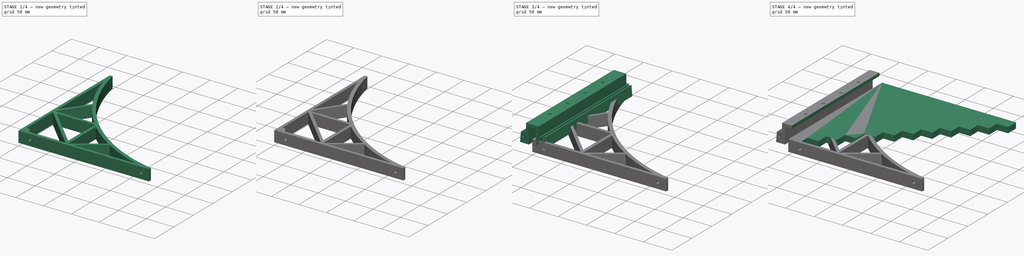
[diagram: build sequence overview — one tinted view per stage of 4, left to right]
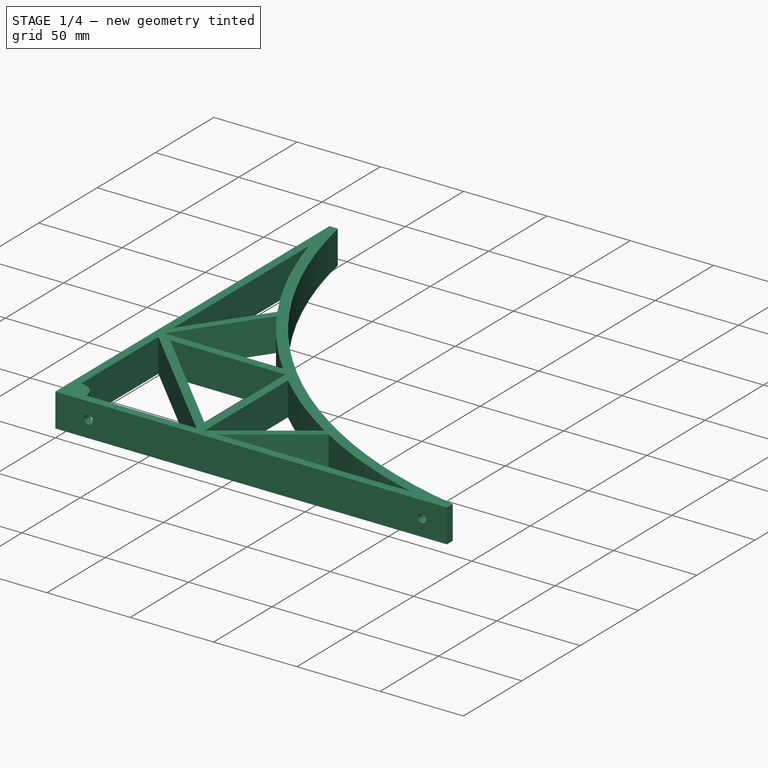
[diagram: stage 1 of 4 — iso view after this stage's code; geometry added in this stage tinted green]
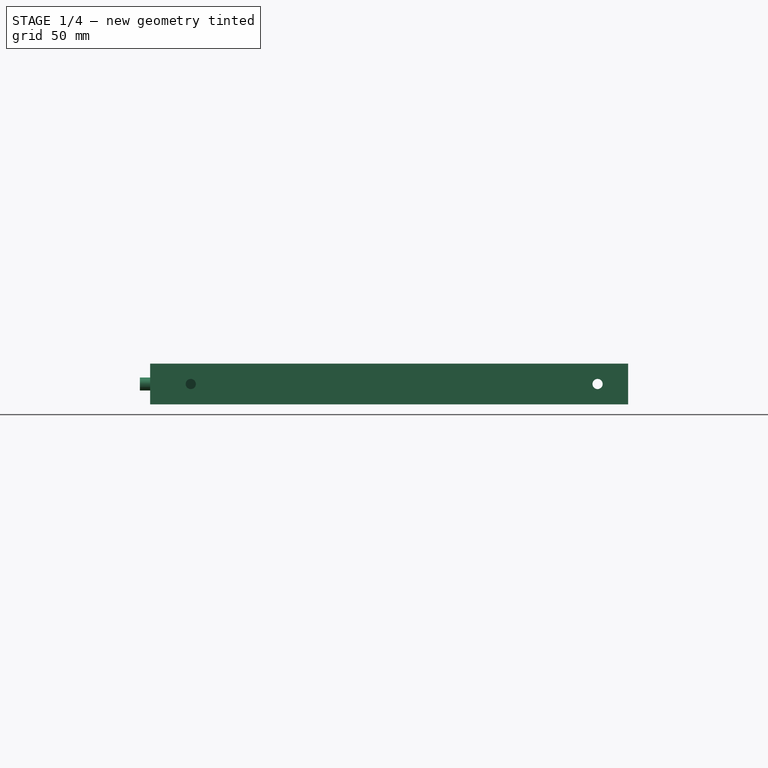
[diagram: stage 1 of 4 — front view after this stage's code; geometry added in this stage tinted green]
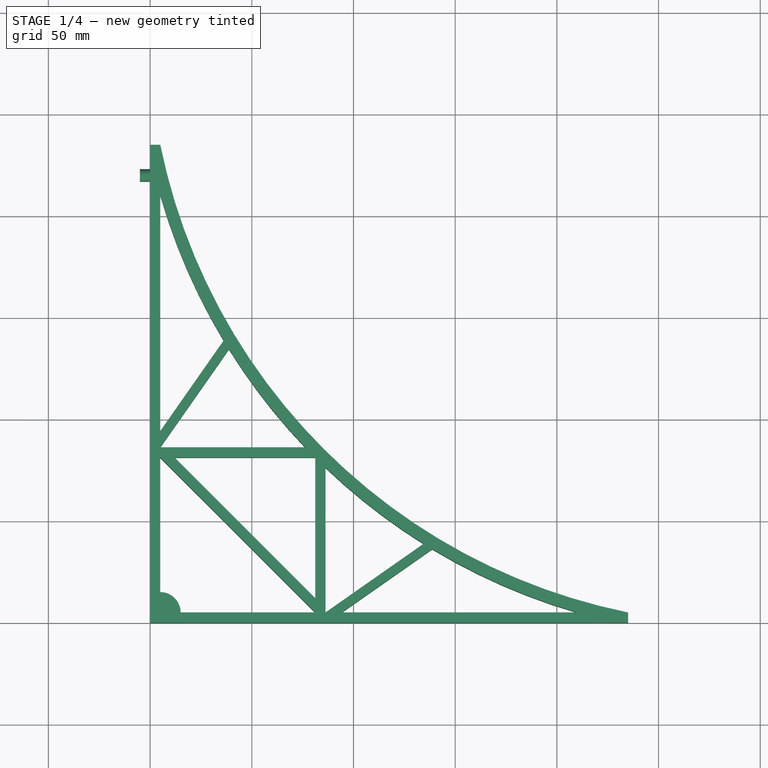
[diagram: stage 1 of 4 — top view after this stage's code; geometry added in this stage tinted green]
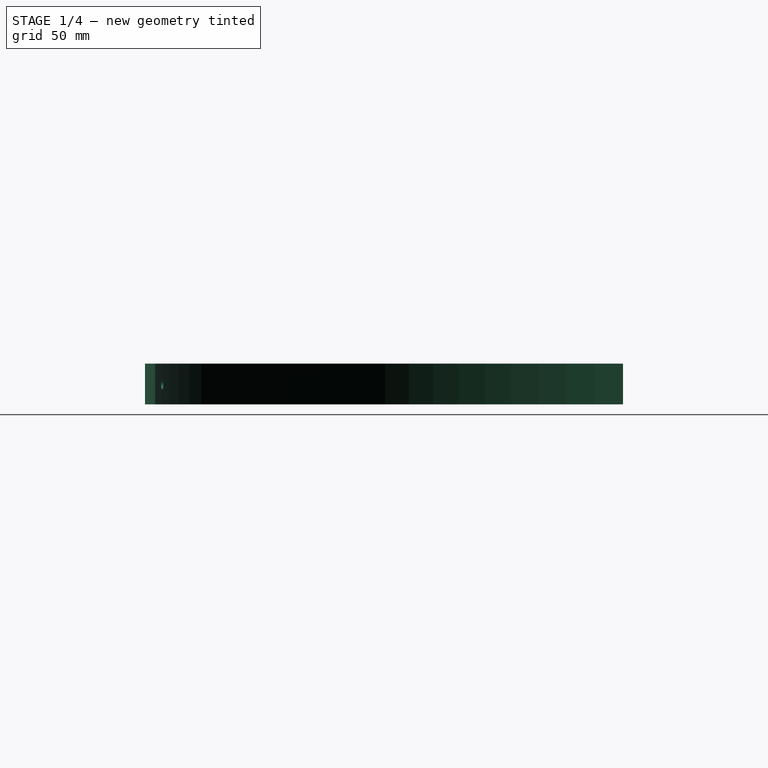
[diagram: stage 1 of 4 — right view after this stage's code; geometry added in this stage tinted green]
FCSTD DOCUMENT  (FreeCAD 2023.131R26244 +5365 (Git))
Label: Shelf Support
License: All rights reserved
LicenseURL: http://en.wikipedia.org/wiki/All_rights_reserved
objects: Sketcher::SketchObject×12, PartDesign::Pocket×6, PartDesign::Pad×4, PartDesign::Body×3, Spreadsheet::Sheet×1, PartDesign::Fillet×1, PartDesign::SubShapeBinder×1
note: 61 computed .brp shape members not serialized (recipe doc carries the construction recipe); baked Part::Feature solids carry a one-line shape summary decoded from their .brp

FEATURE [PartDesign::Body] Body  label="Tetris"
  AutoGroupSolids = false
  ClaimAllChildren = false
  ExportMode = 0
  Group = -> [Sketch,Sketch001,Pad,Pocket]
  InvalidShape = false
  Origin = -> Origin
  Tip = -> Pocket
  TreeRank = 11
  ValidateShape = true
  _ExportChildren = -> [Pad,Pocket]
  _GroupVersion = 1
FEATURE [Sketcher::SketchObject] Sketch002
  ArcFitTolerance = 1e-06
  AttachmentSupport = -> [XY_Plane001]
  ExternalBSplineMaxDegree = 5
  ExternalBSplineTolerance = 0.0001
  FullyConstrained = true
  InternalTolerance = 1e-06
  InvalidShape = false
  MakeInternals = false
  MapMode = 5
  Support = -> [XY_Plane001]
  TreeRank = 29
  ValidateShape = true
  expr: Constraints[10] = <<Parameters>>.board_width
  expr: Constraints[11] = <<Parameters>>.board_width
  expr: Constraints[12] = <<Parameters>>.thickness
  expr: Constraints[13] = <<Parameters>>.board_width * 1.25
  expr: Constraints[19] = <<Parameters>>.thickness
  expr: Constraints[20] = <<Parameters>>.thickness
  expr: Constraints[21] = <<Parameters>>.thickness
  expr: Constraints[22] = <<Parameters>>.thickness * 5
  expr: Constraints[23] = <<Parameters>>.thickness * 4
  expr: Constraints[26] = <<Parameters>>.thickness
  expr: Constraints[27] = <<Parameters>>.thickness
  expr: Constraints[33] = <<Parameters>>.thickness
  expr: Constraints[34] = <<Parameters>>.thickness
  expr: Constraints[44] = <<Parameters>>.thickness
  expr: Constraints[49] = <<Parameters>>.thickness
  expr: Constraints[67] = <<Parameters>>.thickness
  sketch-geometry (26):
    g0: LineSegment StartX=0 StartY=0 StartZ=0 EndX=0 EndY=235 EndZ=0
    g1: LineSegment StartX=0 StartY=235 StartZ=0 EndX=5 EndY=235 EndZ=0
    g2: LineSegment StartX=5 StartY=210 StartZ=0 EndX=5 EndY=94.2123 EndZ=0
    g3: LineSegment StartX=15 StartY=5 StartZ=0 EndX=81.2169 EndY=5 EndZ=0
    g4: LineSegment StartX=235 StartY=5 StartZ=0 EndX=235 EndY=0 EndZ=0
    g5: LineSegment StartX=235 StartY=0 StartZ=0 EndX=0 EndY=0 EndZ=0
    g6: ArcOfCircle CenterX=293.75 CenterY=293.75 CenterZ=0 NormalX=0 NormalY=0 NormalZ=1 AngleXU=0 Radius=294.666 StartAngle=3.34232 EndAngle=4.51167
    g7: ArcOfCircle CenterX=293.75 CenterY=293.75 CenterZ=0 NormalX=0 NormalY=0 NormalZ=1 AngleXU=0 Radius=300.65 StartAngle=3.42389 EndAngle=3.68339
    g8: ArcOfCircle CenterX=5 CenterY=5 CenterZ=0 NormalX=0 NormalY=0 NormalZ=1 AngleXU=0 Radius=10 StartAngle=0 EndAngle=1.5708
    g9: LineSegment StartX=5 StartY=86.2169 StartZ=0 EndX=76.2169 EndY=86.2169 EndZ=0
    g10: LineSegment StartX=86.2169 StartY=5 StartZ=0 EndX=86.2169 EndY=76.2169 EndZ=0
    g11: LineSegment StartX=12.0711 StartY=81.2169 StartZ=0 EndX=81.2169 EndY=81.2169 EndZ=0
    g12: LineSegment StartX=81.2169 StartY=81.2169 StartZ=0 EndX=81.2169 EndY=12.0711 EndZ=0
    g13: ArcOfCircle CenterX=293.75 CenterY=293.75 CenterZ=0 NormalX=0 NormalY=0 NormalZ=1 AngleXU=0 Radius=300.65 StartAngle=3.95051 EndAngle=4.15396
    g14: LineSegment StartX=94.2123 StartY=5 StartZ=0 EndX=210 EndY=5 EndZ=0
    g15: LineSegment StartX=5 StartY=81.2169 StartZ=0 EndX=5 EndY=15 EndZ=0
    g16: LineSegment StartX=86.2169 StartY=5 StartZ=0 EndX=134.449 EndY=38.7722 EndZ=0
    g17: LineSegment StartX=94.2123 StartY=5 StartZ=0 EndX=138.711 EndY=36.1583 EndZ=0
    g18: LineSegment StartX=5 StartY=86.2169 StartZ=0 EndX=38.7722 EndY=134.449 EndZ=0
    g19: LineSegment StartX=5 StartY=94.2123 StartZ=0 EndX=36.1583 EndY=138.711 EndZ=0
    g20: ArcOfCircle CenterX=293.75 CenterY=293.75 CenterZ=0 NormalX=0 NormalY=0 NormalZ=1 AngleXU=0 Radius=300.65 StartAngle=3.70002 EndAngle=3.90347
    g21: ArcOfCircle CenterX=293.75 CenterY=293.75 CenterZ=0 NormalX=0 NormalY=0 NormalZ=1 AngleXU=0 Radius=300.65 StartAngle=4.17059 EndAngle=4.43009
    g22: LineSegment StartX=81.2169 StartY=5 StartZ=0 EndX=5 EndY=81.2169 EndZ=0
    g23: LineSegment StartX=81.2169 StartY=12.0711 StartZ=0 EndX=12.0711 EndY=81.2169 EndZ=0
    g24: GeomPoint [constr] X=43.1085 Y=43.1085 Z=0
    g25: GeomPoint [constr] X=46.644 Y=46.644 Z=0
  constraints (74):
    c: Coincident(g0,g-1)
    c: PointOnObject(g0,g-2)
    c: Coincident(g1,g0)
    c: Vertical(g2)
    c: Horizontal(g3)
    c: PointOnObject(g4,g-1)
    c: Coincident(g5,g4)
    c: Coincident(g5,g0)
    c: Horizontal(g1)
    c: Vertical(g4)
    c: DistanceY(g0,g0) = 235
    c: DistanceX(g0,g4) = 235
    c: DistanceX(g0,g1) = 5
    c: DistanceX(g0,g6) = 293.75
    c: Coincident(g7,g6)
    c: Coincident(g6,g4)
    c: Coincident(g6,g1)
    c: Coincident(g2,g7)
    c: Coincident(g14,g21)
    c: DistanceX(g0,g2) = 5
    c: DistanceY(g4,g14) = 5
    c: DistanceY(g4,g4) = 5
    c: DistanceX(g14,g4) = 25
    c: Diameter(g8) = 20
    c: Coincident(g8,g3)
    c: Coincident(g8,g15)
    c: DistanceX(g0,g8) = 5
    c: DistanceY(g0,g8) = 5
    c: Horizontal(g9)
    c: Vertical(g10)
    c: Horizontal(g11)
    c: Coincident(g12,g11)
    c: Vertical(g12)
    c: DistanceX(g3,g10) = 5
    c: DistanceY(g15,g9) = 5
    c: Coincident(g20,g9)
    c: Coincident(g13,g10)
    c: Coincident(g7,g13)
    c: Symmetric(g9,g10,g11)
    c: DistanceY(g10,g3) = 0
    c: DistanceX(g9,g15) = 0
    c: Horizontal(g14)
    c: Vertical(g15)
    c: Parallel(g16,g17)
    c: Distance(g16,g17) = 5
    c: Coincident(g16,g10)
    c: Angle(g14,g17) = 0.610865
    c: Coincident(g18,g9)
    c: Parallel(g18,g19)
    c: Distance(g18,g19) = 5
    c: Angle(g19,g2) = 0.610865
    c: Coincident(g14,g17)
    c: Equal(g7,g20)
    c: Coincident(g7,g19)
    c: Coincident(g20,g18)
    c: Coincident(g7,g20)
    c: Coincident(g2,g19)
    c: Equal(g13,g21)
    c: Coincident(g13,g16)
    c: Coincident(g21,g17)
    c: Coincident(g13,g21)
    c: DistanceY(g10,g14) = 0
    c: DistanceX(g2,g9) = 0
    c: Coincident(g22,g3)
    c: Coincident(g22,g15)
    c: Parallel(g22,g23)
    c: Symmetric(g23,g23,g25)
    c: Distance(g24,g25) = 5
    c: Coincident(g12,g23)
    c: Coincident(g11,g23)
    c: DistanceX(g23,g3) = 0
    c: DistanceY(g15,g11) = 0
    c: Equal(g3,g15)
    c: Symmetric(g15,g3,g24)
FEATURE [PartDesign::Pad] Pad001
  AddSubType = 0
  AlongSketchNormal = false
  AutoTaperInnerAngle = true
  CheckUpToFaceLimits = true
  ClaimChildren = false
  Direction = (0,0,1)
  Fit = 0
  FitJoin = 0
  InnerFit = 0
  InnerFitJoin = 0
  InvalidShape = false
  Length = 10
  Length2 = 10
  Linearize = true
  NewSolid = false
  Profile = -> Sketch002
  Suppress = false
  TaperInnerAngle = 0
  TaperInnerAngleRev = 0
  TreeRank = 30
  Type = 4
  ValidateShape = true
  _ProfileBasedVersion = 1
FEATURE [Sketcher::SketchObject] Sketch003
  ArcFitTolerance = 1e-06
  AttachmentSupport = -> [Pad001]
  ExternalBSplineMaxDegree = 5
  ExternalBSplineTolerance = 0.0001
  FullyConstrained = true
  InternalTolerance = 1e-06
  InvalidShape = false
  MakeInternals = false
  MapMode = 5
  Placement = pos=(0,0,0) rot=(1,0,0;1.5708rad)
  Support = -> [Pad001]
  TreeRank = 31
  ValidateShape = true
  expr: Constraints[4] = <<Parameters>>.board_width - 3 * <<Parameters>>.thickness
  expr: Constraints[5] = <<Parameters>>.thickness * 4
  sketch-geometry (2):
    g0: Circle CenterX=20 CenterY=0 CenterZ=0 NormalX=0 NormalY=0 NormalZ=1 AngleXU=0 Radius=2.5
    g1: Circle CenterX=220 CenterY=0 CenterZ=0 NormalX=0 NormalY=0 NormalZ=1 AngleXU=0 Radius=2.5
  constraints (6):
    c: PointOnObject(g0,g-1)
    c: PointOnObject(g1,g-1)
    c: Equal(g0,g1)
    c: Diameter(g0) = 5
    c: DistanceX(g-1,g1) = 220
    c: DistanceX(g-1,g0) = 20
FEATURE [PartDesign::Pocket] Pocket001
  AddSubType = 1
  AutoTaperInnerAngle = true
  BaseFeature = -> Pad001
  CheckUpToFaceLimits = true
  ClaimChildren = false
  Fit = 0
  FitJoin = 0
  InnerFit = 0
  InnerFitJoin = 0
  InvalidShape = false
  Length = 50
  Length2 = 100
  Linearize = true
  NewSolid = false
  Profile = -> Sketch003
  Suppress = false
  TaperInnerAngle = 0
  TaperInnerAngleRev = 0
  TreeRank = 32
  Type = 0
  ValidateShape = true
  _ProfileBasedVersion = 1
  _Version = 1
  expr: Length = <<Parameters>>.thickness * 10
FEATURE [Sketcher::SketchObject] Sketch004
  ArcFitTolerance = 1e-06
  AttachmentSupport = -> [Pocket001]
  ExternalBSplineMaxDegree = 5
  ExternalBSplineTolerance = 0.0001
  FullyConstrained = true
  InternalTolerance = 1e-06
  InvalidShape = false
  MakeInternals = false
  MapMode = 5
  Placement = pos=(0,0,0) rot=(0.57735,-0.57735,-0.57735;2.0944rad)
  Support = -> [Pocket001]
  TreeRank = 33
  ValidateShape = true
  expr: Constraints[2] = <<Parameters>>.board_width - 3 * <<Parameters>>.thickness
  sketch-geometry (1):
    g0: Circle CenterX=-220 CenterY=0 CenterZ=0 NormalX=0 NormalY=0 NormalZ=1 AngleXU=0 Radius=3.175
  constraints (3):
    c: PointOnObject(g0,g-1)
    c: Diameter(g0) = 6.35
    c: DistanceX(g0,g-1) = 220
FEATURE [PartDesign::Pad] Pad002
  AddSubType = 0
  AlongSketchNormal = false
  AutoTaperInnerAngle = true
  BaseFeature = -> Pocket001
  CheckUpToFaceLimits = true
  ClaimChildren = false
  Direction = (-1,0,0)
  Fit = 0
  FitJoin = 0
  InnerFit = 0
  InnerFitJoin = 0
  InvalidShape = false
  Length = 5
  Length2 = 100
  Linearize = true
  NewSolid = false
  Profile = -> Sketch004
  Suppress = false
  TaperInnerAngle = 0
  TaperInnerAngleRev = 0
  TreeRank = 34
  Type = 0
  ValidateShape = true
  _ProfileBasedVersion = 1
  expr: Length = <<Parameters>>.thickness
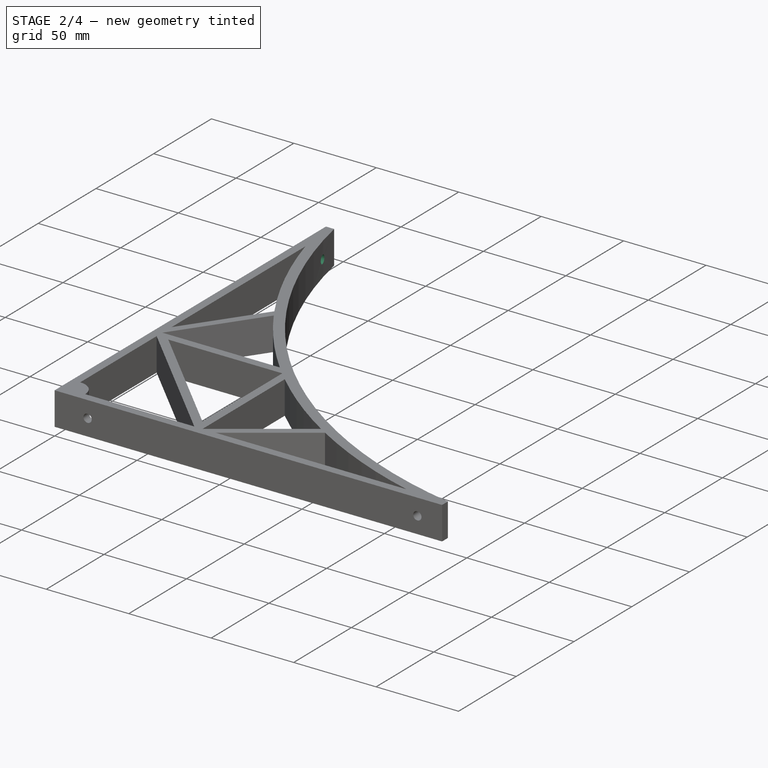
[diagram: stage 2 of 4 — iso view after this stage's code; geometry added in this stage tinted green]
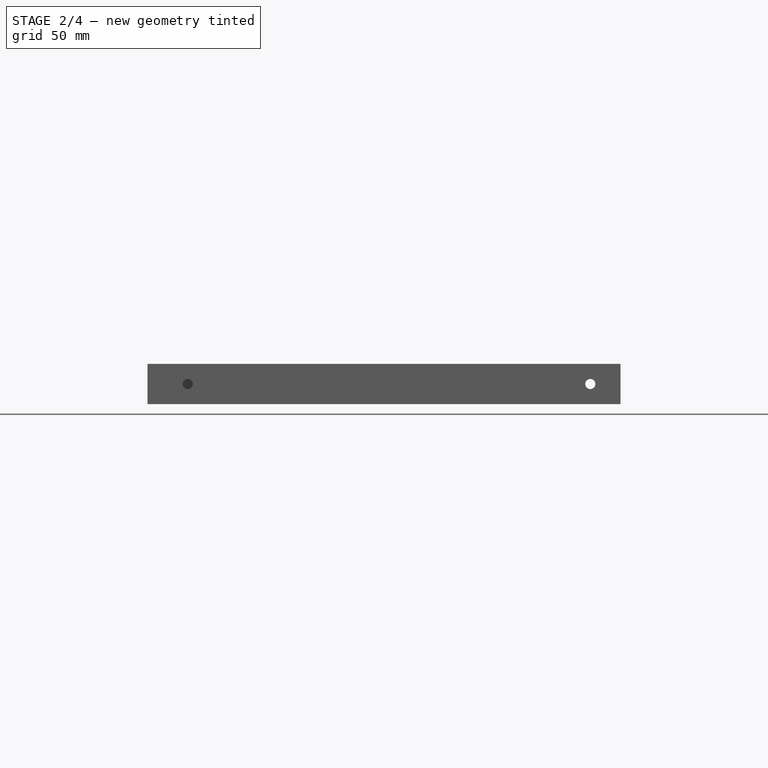
[diagram: stage 2 of 4 — front view after this stage's code; geometry added in this stage tinted green]
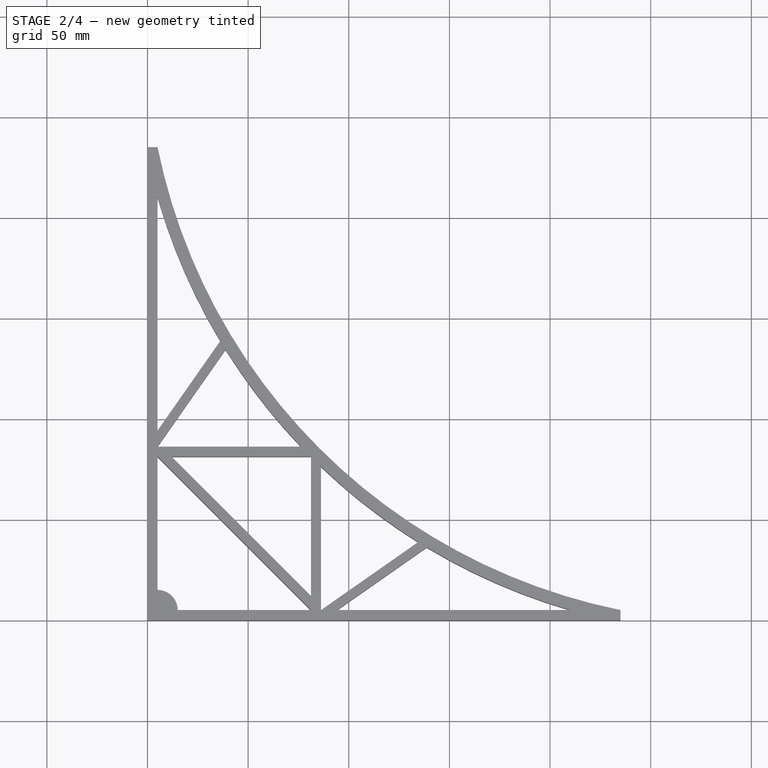
[diagram: stage 2 of 4 — top view after this stage's code; geometry added in this stage tinted green]
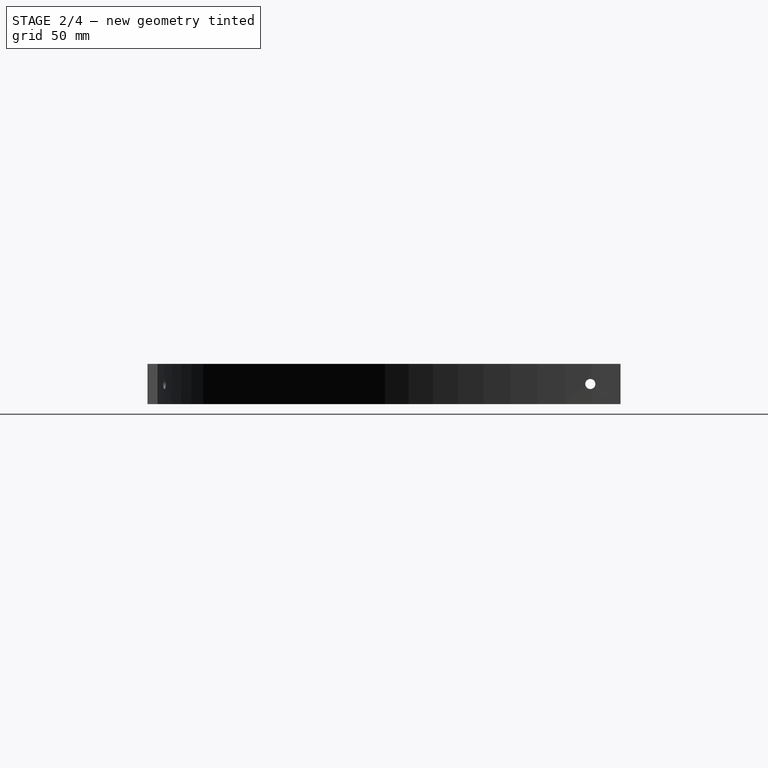
[diagram: stage 2 of 4 — right view after this stage's code; geometry added in this stage tinted green]
FEATURE [PartDesign::Fillet] Fillet
  AddSubType = 0
  Base = -> Pad002 [Edge57]
  BaseFeature = -> Pad002
  InvalidShape = false
  NewSolid = false
  Radius = 3.175
  SupportTransform = false
  Suppress = false
  TreeRank = 35
  ValidateShape = true
FEATURE [PartDesign::Body] Body002  label="Bin Hangar"
  AutoGroupSolids = false
  ClaimAllChildren = false
  ExportMode = 0
  Group = -> [Sketch005,Pad003,Pad003_Profile,Sketch007,Pocket002,Sketch008,Pocket003]
  InvalidShape = false
  Origin = -> Origin002
  Tip = -> Pocket003
  TreeRank = 45
  ValidateShape = true
  _ExportChildren = -> [Sketch005,Pad003,Pocket002,Pocket003]
  _GroupVersion = 1
FEATURE [Sketcher::SketchObject] Sketch009
  ArcFitTolerance = 1e-06
  AttachmentSupport = -> [Fillet]
  ExternalBSplineMaxDegree = 5
  ExternalBSplineTolerance = 0.0001
  FullyConstrained = true
  InternalTolerance = 1e-06
  InvalidShape = false
  MakeInternals = false
  MapMode = 5
  Placement = pos=(0,0,0) rot=(0.57735,-0.57735,-0.57735;2.0944rad)
  Support = -> [Fillet]
  TreeRank = 57
  ValidateShape = true
  expr: Constraints[3] = <<Parameters>>.thickness * 4
  expr: Constraints[4] = <<Parameters>>.board_width - 3 * <<Parameters>>.thickness
  expr: Constraints[5] = <<Parameters>>.bin_hangar_screw_hole_diameter
  sketch-geometry (2):
    g0: Circle CenterX=-20 CenterY=0 CenterZ=0 NormalX=0 NormalY=0 NormalZ=1 AngleXU=0 Radius=2.5
    g1: Circle CenterX=-220 CenterY=0 CenterZ=0 NormalX=0 NormalY=0 NormalZ=1 AngleXU=0 Radius=2.5
  constraints (6):
    c: PointOnObject(g0,g-1)
    c: PointOnObject(g1,g-1)
    c: Equal(g1,g0)
    c: DistanceX(g0,g-1) = 20
    c: DistanceX(g1,g-1) = 220
    c: Diameter(g0) = 5
FEATURE [PartDesign::Pocket] Pocket004
  AddSubType = 1
  AutoTaperInnerAngle = true
  BaseFeature = -> Fillet
  CheckUpToFaceLimits = true
  ClaimChildren = false
  Fit = 0
  FitJoin = 0
  InnerFit = 0
  InnerFitJoin = 0
  InvalidShape = false
  Length = 20
  Length2 = 100
  Linearize = true
  NewSolid = false
  Profile = -> Sketch009
  Suppress = false
  TaperInnerAngle = 0
  TaperInnerAngleRev = 0
  TreeRank = 58
  Type = 0
  ValidateShape = true
  _ProfileBasedVersion = 1
  _Version = 1
FEATURE [Sketcher::SketchObject] Sketch010
  ArcFitTolerance = 1e-06
  AttachmentSupport = -> [XY_Plane001]
  ExternalBSplineMaxDegree = 5
  ExternalBSplineTolerance = 0.0001
  FullyConstrained = false
  InternalTolerance = 1e-06
  InvalidShape = false
  MakeInternals = false
  MapMode = 5
  Support = -> [XY_Plane001]
  TreeRank = 59
  ValidateShape = true
  sketch-geometry (4):
    g0: LineSegment StartX=0 StartY=0 StartZ=0 EndX=-169.421 EndY=0 EndZ=0
    g1: LineSegment StartX=-169.421 StartY=0 StartZ=0 EndX=-169.421 EndY=244.635 EndZ=0
    g2: LineSegment StartX=-169.421 StartY=244.635 StartZ=0 EndX=0 EndY=244.635 EndZ=0
    g3: LineSegment StartX=0 StartY=244.635 StartZ=0 EndX=0 EndY=0 EndZ=0
  constraints (9):
    c: Coincident(g0,g1)
    c: Coincident(g1,g2)
    c: Coincident(g2,g3)
    c: Coincident(g3,g0)
    c: Horizontal(g0)
    c: Horizontal(g2)
    c: Vertical(g1)
    c: Vertical(g3)
    c: Coincident(g0,g-1)
FEATURE [PartDesign::Pocket] Pocket005
  AddSubType = 1
  AutoTaperInnerAngle = true
  BaseFeature = -> Pocket004
  CheckUpToFaceLimits = true
  ClaimChildren = false
  Fit = 0
  FitJoin = 0
  InnerFit = 0
  InnerFitJoin = 0
  InvalidShape = false
  Length = 100
  Length2 = 100
  Linearize = true
  NewSolid = false
  Profile = -> Sketch010
  Suppress = false
  TaperInnerAngle = 0
  TaperInnerAngleRev = 0
  TreeRank = 60
  Type = 4
  ValidateShape = true
  _ProfileBasedVersion = 1
  _Version = 1
FEATURE [PartDesign::Body] Body001  label="Simple"
  AutoGroupSolids = false
  ClaimAllChildren = false
  ExportMode = 0
  Group = -> [Sketch002,Pad001,Sketch003,Pocket001,Sketch004,Pad002,Fillet,Sketch009,Pocket004,Sketch010,Pocket005]
  InvalidShape = false
  Origin = -> Origin001
  Tip = -> Pocket005
  TreeRank = 28
  ValidateShape = true
  _ExportChildren = -> [Pad001,Pocket001,Pad002,Fillet,Pocket004,Pocket005]
  _GroupVersion = 1
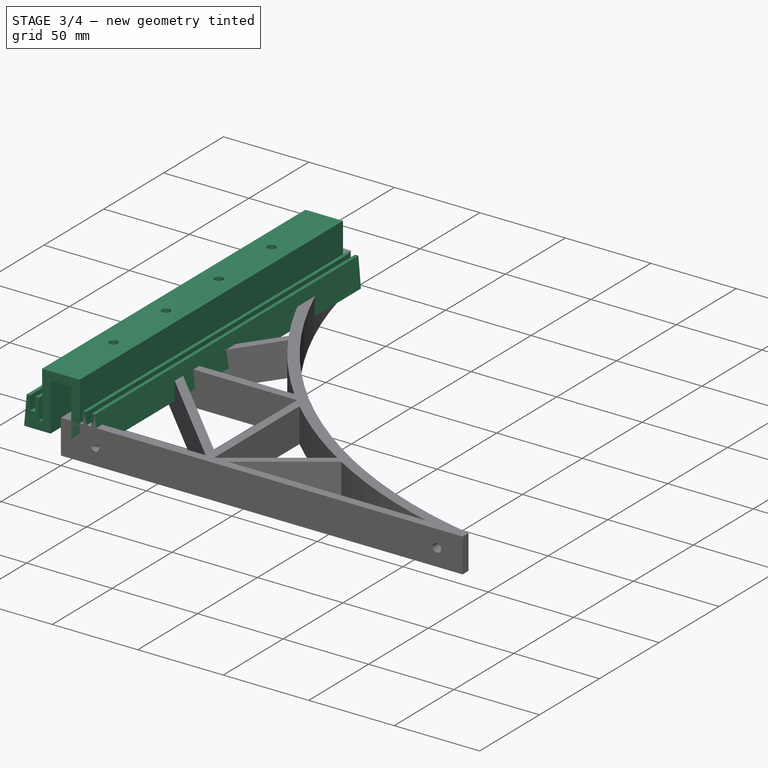
[diagram: stage 3 of 4 — iso view after this stage's code; geometry added in this stage tinted green]
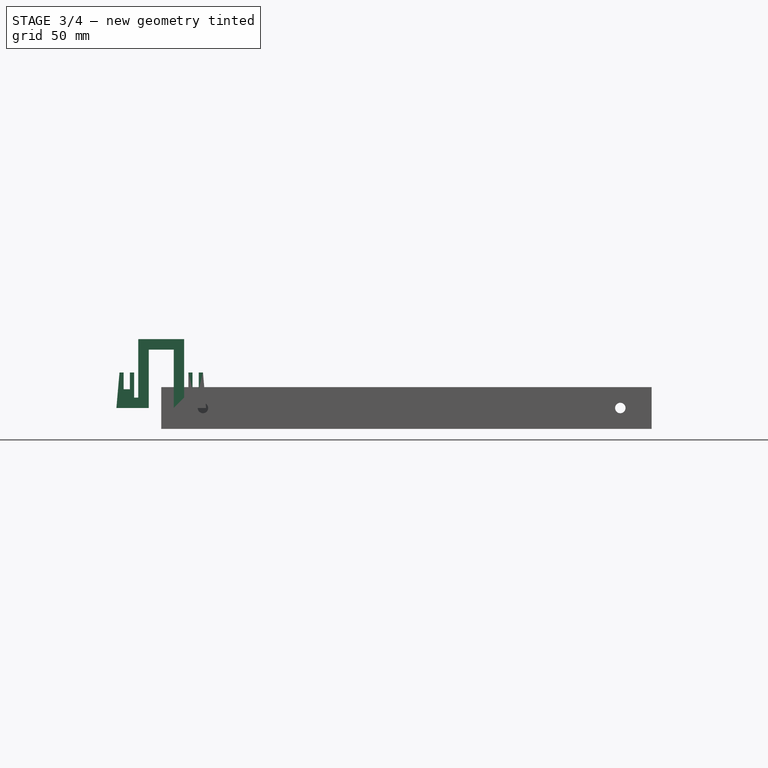
[diagram: stage 3 of 4 — front view after this stage's code; geometry added in this stage tinted green]
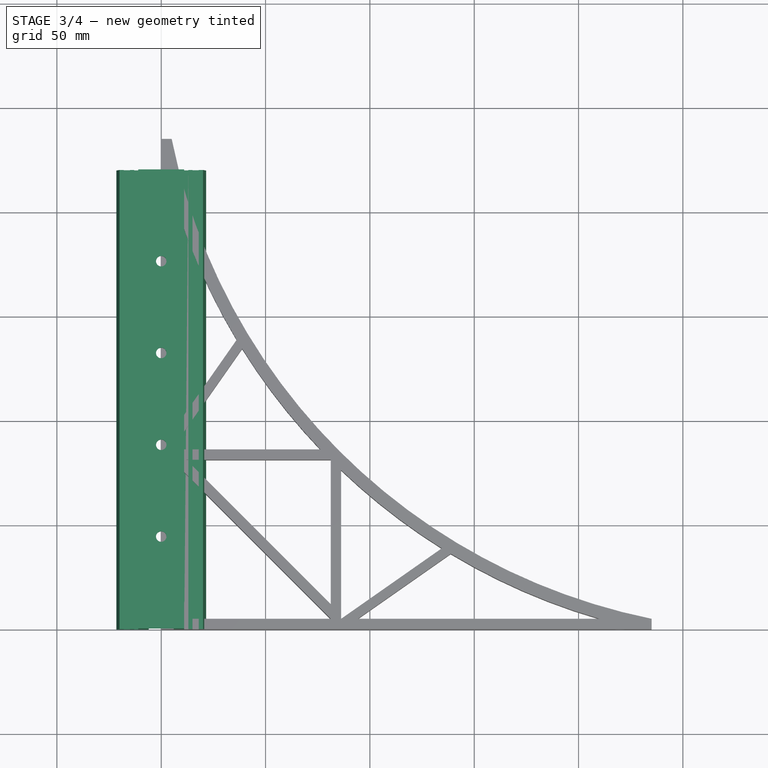
[diagram: stage 3 of 4 — top view after this stage's code; geometry added in this stage tinted green]
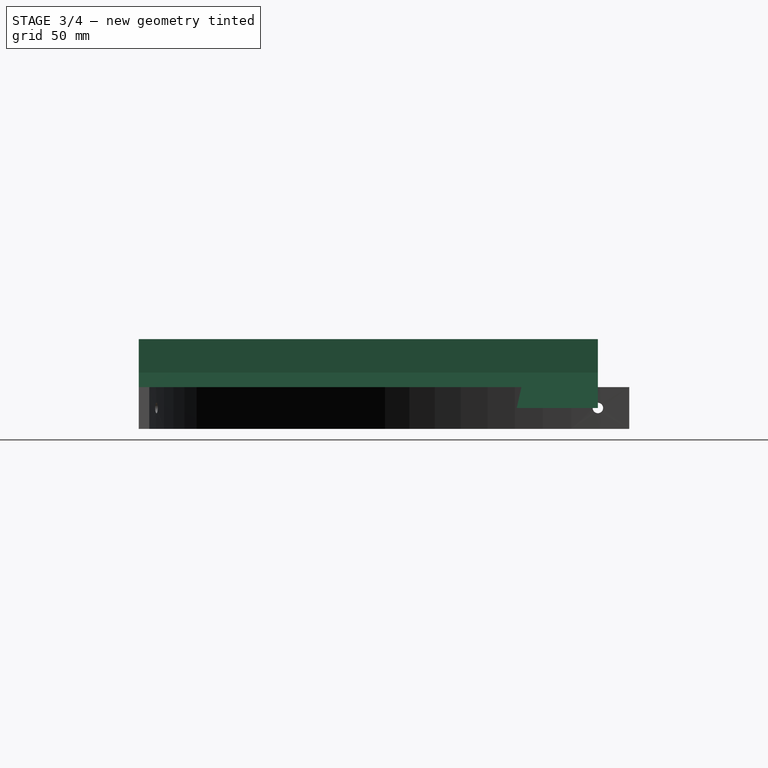
[diagram: stage 3 of 4 — right view after this stage's code; geometry added in this stage tinted green]
FEATURE [Sketcher::SketchObject] Sketch005
  ArcFitTolerance = 1e-06
  AttachmentSupport = -> [XZ_Plane002]
  ExternalBSplineMaxDegree = 5
  ExternalBSplineTolerance = 0.0001
  FullyConstrained = true
  InternalTolerance = 1e-06
  InvalidShape = false
  MakeInternals = false
  MapMode = 5
  Placement = pos=(0,0,0) rot=(1,0,0;1.5708rad)
  Support = -> [XZ_Plane002]
  TreeRank = 46
  ValidateShape = true
  expr: Constraints[10] = <<Parameters>>.tooth_offset_second
  expr: Constraints[13] = <<Parameters>>.thickness
  expr: Constraints[14] = <<Parameters>>.thickness
  expr: Constraints[15] = <<Parameters>>.shelf_to_bin_top + <<Parameters>>.bin_lid_height
  expr: Constraints[16] = <<Parameters>>.thickness
  expr: Constraints[17] = <<Parameters>>.bin_lid_overhand_depth
  expr: Constraints[29] = <<Parameters>>.plastic_thickness
  expr: Constraints[30] = <<Parameters>>.tooth_depth
  expr: Constraints[33] = <<Parameters>>.bin_hangar_screw_head_diameter / 2
  expr: Constraints[36] = <<Parameters>>.bin_hangar_screw_head_diameter
  expr: Constraints[39] = <<Parameters>>.bin_hangar_screw_head_diameter + 2 * <<Parameters>>.thickness
  expr: Constraints[9] = <<Parameters>>.tooth_offset_first
  sketch-geometry (13):
    g0: LineSegment StartX=-11 StartY=33 StartZ=0 EndX=-11 EndY=5 EndZ=0
    g1: LineSegment StartX=-11 StartY=5 StartZ=0 EndX=-13 EndY=5 EndZ=0
    g2: LineSegment StartX=-15 StartY=17 StartZ=0 EndX=-15 EndY=9 EndZ=0
    g3: LineSegment StartX=-15 StartY=9 StartZ=0 EndX=-18 EndY=9 EndZ=0
    g4: LineSegment StartX=-18 StartY=9 StartZ=0 EndX=-18 EndY=17 EndZ=0
    g5: LineSegment StartX=-21.4873 StartY=0 StartZ=0 EndX=-6 EndY=0 EndZ=0
    g6: LineSegment StartX=-6 StartY=0 StartZ=0 EndX=-6 EndY=28 EndZ=0
    g7: LineSegment StartX=-18 StartY=17 StartZ=0 EndX=-20 EndY=17 EndZ=0
    g8: LineSegment StartX=-20 StartY=17 StartZ=0 EndX=-21.4873 EndY=0 EndZ=0
    g9: LineSegment StartX=-15 StartY=17 StartZ=0 EndX=-13 EndY=17 EndZ=0
    g10: LineSegment StartX=-13 StartY=17 StartZ=0 EndX=-13 EndY=5 EndZ=0
    g11: LineSegment StartX=-6 StartY=28 StartZ=0 EndX=6 EndY=28 EndZ=0
    g12: LineSegment StartX=-11 StartY=33 StartZ=0 EndX=11 EndY=33 EndZ=0
  constraints (40):
    c: Vertical(g0)
    c: Coincident(g1,g0)
    c: Horizontal(g1)
    c: Coincident(g3,g2)
    c: Horizontal(g3)
    c: Coincident(g4,g3)
    c: Horizontal(g5)
    c: Coincident(g6,g5)
    c: Vertical(g6)
    c: DistanceX(g2,g0) = 4
    c: DistanceX(g4,g0) = 7
    c: Vertical(g2)
    c: Vertical(g4)
    c: DistanceY(g6,g0) = 5
    c: DistanceX(g0,g6) = 5
    c: DistanceY(g0,g0) = 28
    c: DistanceY(g5,g0) = 5
    c: DistanceY(g1,g2) = 4
    c: Equal(g4,g2)
    c: Coincident(g7,g4)
    c: Horizontal(g7)
    c: Coincident(g8,g7)
    c: Coincident(g8,g5)
    c: DistanceX(g7,g4) = 2
    c: Coincident(g9,g2)
    c: Horizontal(g9)
    c: Coincident(g10,g9)
    c: Coincident(g10,g1)
    c: Vertical(g10)
    c: DistanceX(g1,g0) = 2
    c: DistanceY(g3,g4) = 8
    c: Angle(g5,g8) = 1.48353
    c: PointOnObject(g5,g-1)
    c: DistanceX(g6,g-1) = 6
    c: Coincident(g11,g6)
    c: Horizontal(g11)
    c: DistanceX(g6,g11) = 12
    c: Coincident(g12,g0)
    c: Horizontal(g12)
    c: DistanceX(g0,g12) = 22
FEATURE [Sketcher::SketchObject] MirroredSketch
  ArcFitTolerance = 1e-06
  ExternalBSplineMaxDegree = 5
  ExternalBSplineTolerance = 0.0001
  FullyConstrained = false
  InternalTolerance = 1e-06
  InvalidShape = false
  MakeInternals = false
  Placement = pos=(0,0,0) rot=(1,0,0;1.5708rad)
  TreeRank = 48
  ValidateShape = true
  sketch-geometry (13):
    g0: LineSegment StartX=11 StartY=33 StartZ=0 EndX=11 EndY=5 EndZ=0
    g1: LineSegment StartX=11 StartY=5 StartZ=0 EndX=13 EndY=5 EndZ=0
    g2: LineSegment StartX=15 StartY=17 StartZ=0 EndX=15 EndY=9 EndZ=0
    g3: LineSegment StartX=15 StartY=9 StartZ=0 EndX=18 EndY=9 EndZ=0
    g4: LineSegment StartX=18 StartY=9 StartZ=0 EndX=18 EndY=17 EndZ=0
    g5: LineSegment StartX=21.4873 StartY=0 StartZ=0 EndX=6 EndY=0 EndZ=0
    g6: LineSegment StartX=6 StartY=0 StartZ=0 EndX=6 EndY=28 EndZ=0
    g7: LineSegment StartX=18 StartY=17 StartZ=0 EndX=20 EndY=17 EndZ=0
    g8: LineSegment StartX=20 StartY=17 StartZ=0 EndX=21.4873 EndY=0 EndZ=0
    g9: LineSegment StartX=15 StartY=17 StartZ=0 EndX=13 EndY=17 EndZ=0
    g10: LineSegment StartX=13 StartY=17 StartZ=0 EndX=13 EndY=5 EndZ=0
    g11: LineSegment StartX=6 StartY=28 StartZ=0 EndX=-6 EndY=28 EndZ=0
    g12: LineSegment StartX=11 StartY=33 StartZ=0 EndX=-11 EndY=33 EndZ=0
  constraints (26):
    c: Vertical(g0)
    c: Coincident(g1,g0)
    c: Horizontal(g1)
    c: Coincident(g3,g2)
    c: Horizontal(g3)
    c: Coincident(g4,g3)
    c: Horizontal(g5)
    c: Coincident(g6,g5)
    c: Vertical(g6)
    c: Vertical(g2)
    c: Vertical(g4)
    c: Equal(g4,g2)
    c: Coincident(g7,g4)
    c: Horizontal(g7)
    c: Coincident(g8,g7)
    c: Coincident(g8,g5)
    c: Coincident(g9,g2)
    c: Horizontal(g9)
    c: Coincident(g10,g9)
    c: Coincident(g10,g1)
    c: Vertical(g10)
    c: Angle(g5,g8) = -1.48353
    c: Coincident(g11,g6)
    c: Horizontal(g11)
    c: Coincident(g12,g0)
    c: Horizontal(g12)
FEATURE [Sketcher::SketchObject] Sketch006
  ArcFitTolerance = 1e-06
  ExternalBSplineMaxDegree = 5
  ExternalBSplineTolerance = 0.0001
  FullyConstrained = true
  InternalTolerance = 1e-06
  InvalidShape = false
  MakeInternals = false
  Placement = pos=(0,0,0) rot=(1,0,0;1.5708rad)
  TreeRank = 49
  ValidateShape = true
  sketch-geometry (24):
    g0: LineSegment StartX=-11 StartY=33 StartZ=0 EndX=-11 EndY=5 EndZ=0
    g1: LineSegment StartX=-11 StartY=5 StartZ=0 EndX=-13 EndY=5 EndZ=0
    g2: LineSegment StartX=-15 StartY=17 StartZ=0 EndX=-15 EndY=9 EndZ=0
    g3: LineSegment StartX=-15 StartY=9 StartZ=0 EndX=-18 EndY=9 EndZ=0
    g4: LineSegment StartX=-18 StartY=9 StartZ=0 EndX=-18 EndY=17 EndZ=0
    g5: LineSegment StartX=-21.4873 StartY=0 StartZ=0 EndX=-6 EndY=0 EndZ=0
    g6: LineSegment StartX=-6 StartY=0 StartZ=0 EndX=-6 EndY=28 EndZ=0
    g7: LineSegment StartX=-18 StartY=17 StartZ=0 EndX=-20 EndY=17 EndZ=0
    g8: LineSegment StartX=-20 StartY=17 StartZ=0 EndX=-21.4873 EndY=0 EndZ=0
    g9: LineSegment StartX=-15 StartY=17 StartZ=0 EndX=-13 EndY=17 EndZ=0
    g10: LineSegment StartX=-13 StartY=17 StartZ=0 EndX=-13 EndY=5 EndZ=0
    g11: LineSegment StartX=-6 StartY=28 StartZ=0 EndX=6 EndY=28 EndZ=0
    g12: LineSegment StartX=-11 StartY=33 StartZ=0 EndX=11 EndY=33 EndZ=0
    g13: LineSegment StartX=11 StartY=33 StartZ=0 EndX=11 EndY=5 EndZ=0
    g14: LineSegment StartX=11 StartY=5 StartZ=0 EndX=13 EndY=5 EndZ=0
    g15: LineSegment StartX=15 StartY=17 StartZ=0 EndX=15 EndY=9 EndZ=0
    g16: LineSegment StartX=15 StartY=9 StartZ=0 EndX=18 EndY=9 EndZ=0
    g17: LineSegment StartX=18 StartY=9 StartZ=0 EndX=18 EndY=17 EndZ=0
    g18: LineSegment StartX=21.4873 StartY=0 StartZ=0 EndX=6 EndY=0 EndZ=0
    g19: LineSegment StartX=6 StartY=0 StartZ=0 EndX=6 EndY=28 EndZ=0
    g20: LineSegment StartX=18 StartY=17 StartZ=0 EndX=20 EndY=17 EndZ=0
    g21: LineSegment StartX=20 StartY=17 StartZ=0 EndX=21.4873 EndY=0 EndZ=0
    g22: LineSegment StartX=15 StartY=17 StartZ=0 EndX=13 EndY=17 EndZ=0
    g23: LineSegment StartX=13 StartY=17 StartZ=0 EndX=13 EndY=5 EndZ=0
  constraints (72):
    c: Vertical(g0)
    c: Coincident(g1,g0)
    c: Horizontal(g1)
    c: Coincident(g3,g2)
    c: Horizontal(g3)
    c: Coincident(g4,g3)
    c: Horizontal(g5)
    c: Coincident(g6,g5)
    c: Vertical(g6)
    c: DistanceX(g2,g0) = 4
    c: DistanceX(g4,g0) = 7
    c: Vertical(g2)
    c: Vertical(g4)
    c: DistanceY(g6,g0) = 5
    c: DistanceX(g0,g6) = 5
    c: DistanceY(g0,g0) = 28
    c: DistanceY(g5,g0) = 5
    c: DistanceY(g1,g2) = 4
    c: Equal(g4,g2)
    c: Coincident(g7,g4)
    c: Horizontal(g7)
    c: Coincident(g8,g7)
    c: Coincident(g8,g5)
    c: DistanceX(g7,g4) = 2
    c: Coincident(g9,g2)
    c: Horizontal(g9)
    c: Coincident(g10,g9)
    c: Coincident(g10,g1)
    c: Vertical(g10)
    c: DistanceX(g1,g0) = 2
    c: DistanceY(g3,g4) = 8
    c: Angle(g5,g8) = 1.48353
    c: PointOnObject(g5,g-1)
    c: DistanceX(g6,g-1) = 6
    c: Coincident(g11,g6)
    c: Horizontal(g11)
    c: DistanceX(g6,g11) = 12
    c: Coincident(g12,g0)
    c: Horizontal(g12)
    c: DistanceX(g0,g12) = 22
    c: Vertical(g13)
    c: Coincident(g14,g13)
    c: Horizontal(g14)
    c: Coincident(g16,g15)
    c: Horizontal(g16)
    c: Coincident(g17,g16)
    c: Horizontal(g18)
    c: Coincident(g19,g18)
    c: Vertical(g19)
    c: Vertical(g15)
    c: Vertical(g17)
    c: Equal(g17,g15)
    c: Coincident(g20,g17)
    c: Horizontal(g20)
    c: Coincident(g21,g20)
    c: Coincident(g21,g18)
    c: Coincident(g22,g15)
    c: Horizontal(g22)
    c: Coincident(g23,g22)
    c: Coincident(g23,g14)
    c: Vertical(g23)
    c: Angle(g18,g21) = -1.48353
    c: Coincident(g19,g11)
    c: PointOnObject(g18,g-1)
    c: Coincident(g13,g12)
    c: Equal(g8,g21)
    c: Equal(g17,g4)
    c: Equal(g20,g7)
    c: Equal(g22,g9)
    c: Equal(g14,g1)
    c: Equal(g16,g3)
    c: Equal(g10,g23)
FEATURE [PartDesign::SubShapeBinder] Pad003_Profile  label="Pad003_Profile(Sketch006)"
  BindCopyOnChange = 0
  BindMode = 0
  ClaimChildren = false
  Context = -> Body002 [Pad003_Profile.]
  EdgeTolerance = 1e-06
  FillStyle = 0
  Fuse = false
  InvalidShape = false
  MakeFace = true
  MergeEdges = true
  OffsetFill = false
  OffsetIntersection = false
  OffsetJoinType = 0
  OffsetOpenResult = false
  Outline = false
  PartialLoad = false
  Relative = true
  SplitEdges = false
  Support = -> [Sketch006]
  TightBound = false
  TreeRank = 51
  ValidateShape = true
  _Version = 8
FEATURE [PartDesign::Pad] Pad003
  AddSubType = 0
  AlongSketchNormal = false
  AutoTaperInnerAngle = true
  CheckUpToFaceLimits = true
  ClaimChildren = false
  Direction = (0,1,-2e-16)
  Fit = 0
  FitJoin = 0
  InnerFit = 0
  InnerFitJoin = 0
  InvalidShape = false
  Length = 220
  Length2 = 100
  Linearize = true
  NewSolid = false
  Profile = -> Pad003_Profile
  Suppress = false
  TaperInnerAngle = 0
  TaperInnerAngleRev = 0
  TreeRank = 52
  Type = 0
  ValidateShape = true
  _ProfileBasedVersion = 1
  expr: Length = <<Parameters>>.hangar_length
FEATURE [Sketcher::SketchObject] Sketch007
  ArcFitTolerance = 1e-06
  AttachmentSupport = -> [Pad003]
  ExternalBSplineMaxDegree = 5
  ExternalBSplineTolerance = 0.0001
  FullyConstrained = true
  InternalTolerance = 1e-06
  InvalidShape = false
  MakeInternals = false
  MapMode = 5
  Placement = pos=(0,7.3e-15,33) rot=(0,0,1;0rad)
  Support = -> [Pad003]
  TreeRank = 53
  ValidateShape = true
  expr: Constraints[10] = <<Parameters>>.hangar_length / 5
  expr: Constraints[11] = <<Parameters>>.hangar_length / 5
  expr: Constraints[1] = <<Parameters>>.bin_hangar_screw_hole_diameter
  expr: Constraints[8] = <<Parameters>>.hangar_length / 5
  expr: Constraints[9] = <<Parameters>>.hangar_length / 5
  sketch-geometry (4):
    g0: Circle CenterX=0 CenterY=44 CenterZ=0 NormalX=0 NormalY=0 NormalZ=1 AngleXU=0 Radius=2.5
    g1: Circle CenterX=0 CenterY=88 CenterZ=0 NormalX=0 NormalY=0 NormalZ=1 AngleXU=0 Radius=2.5
    g2: Circle CenterX=0 CenterY=132 CenterZ=0 NormalX=0 NormalY=0 NormalZ=1 AngleXU=0 Radius=2.5
    g3: Circle CenterX=0 CenterY=176 CenterZ=0 NormalX=0 NormalY=0 NormalZ=1 AngleXU=0 Radius=2.5
  constraints (12):
    c: PointOnObject(g0,g-2)
    c: Diameter(g0) = 5
    c: PointOnObject(g1,g-2)
    c: PointOnObject(g2,g-2)
    c: PointOnObject(g3,g-2)
    c: Equal(g0,g1)
    c: Equal(g0,g2)
    c: Equal(g0,g3)
    c: DistanceY(g-1,g0) = 44
    c: DistanceY(g0,g1) = 44
    c: DistanceY(g2,g3) = 44
    c: DistanceY(g1,g2) = 44
FEATURE [PartDesign::Pocket] Pocket002
  AddSubType = 1
  AutoTaperInnerAngle = true
  BaseFeature = -> Pad003
  CheckUpToFaceLimits = true
  ClaimChildren = false
  Fit = 0
  FitJoin = 0
  InnerFit = 0
  InnerFitJoin = 0
  InvalidShape = false
  Length = 5
  Length2 = 100
  Linearize = true
  NewSolid = false
  Profile = -> Sketch007
  Suppress = false
  TaperInnerAngle = 0
  TaperInnerAngleRev = 0
  TreeRank = 54
  Type = 0
  ValidateShape = true
  _ProfileBasedVersion = 1
  _Version = 1
  expr: Length = <<Parameters>>.thickness
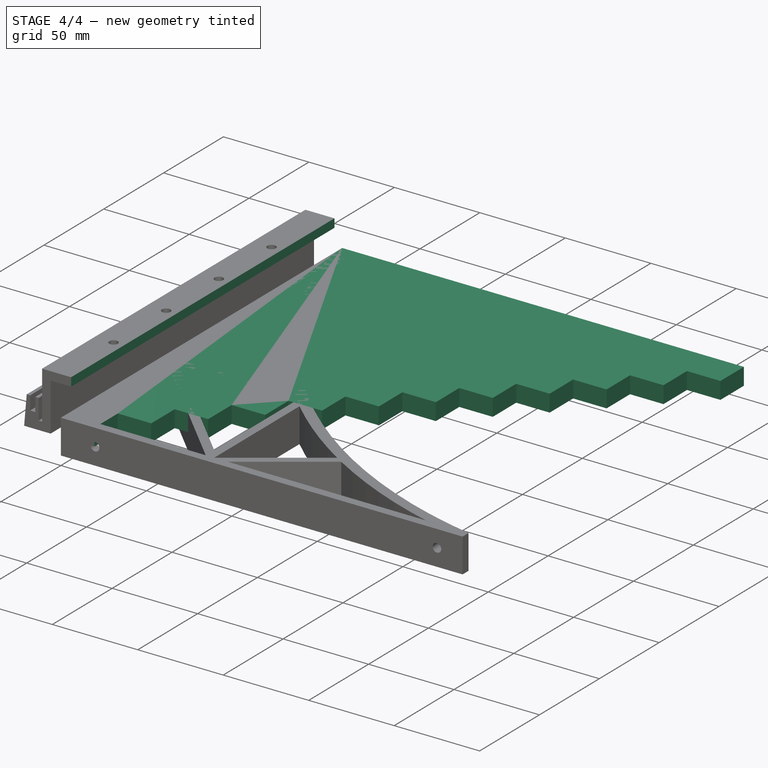
[diagram: stage 4 of 4 — iso view after this stage's code; geometry added in this stage tinted green]
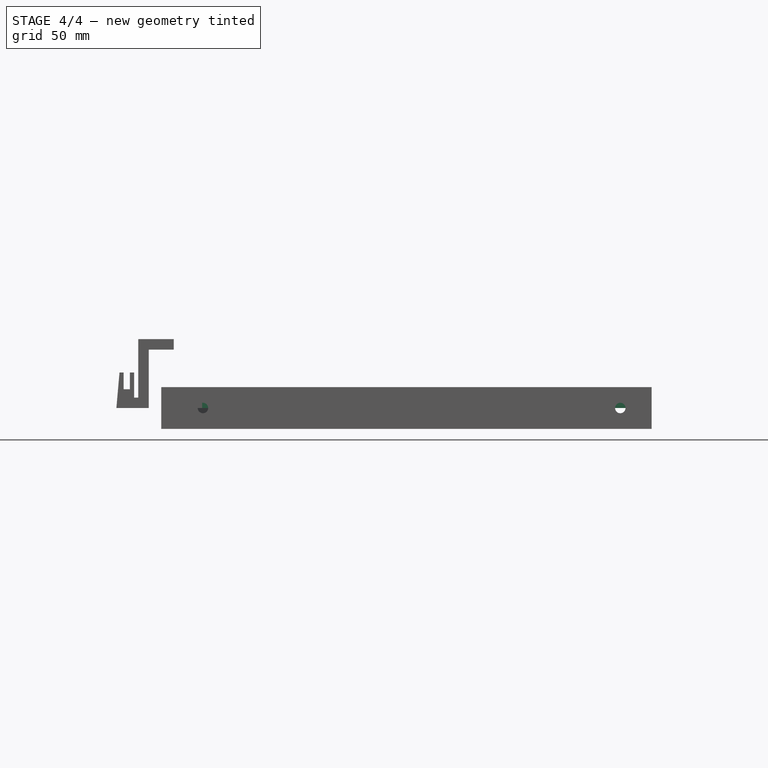
[diagram: stage 4 of 4 — front view after this stage's code; geometry added in this stage tinted green]
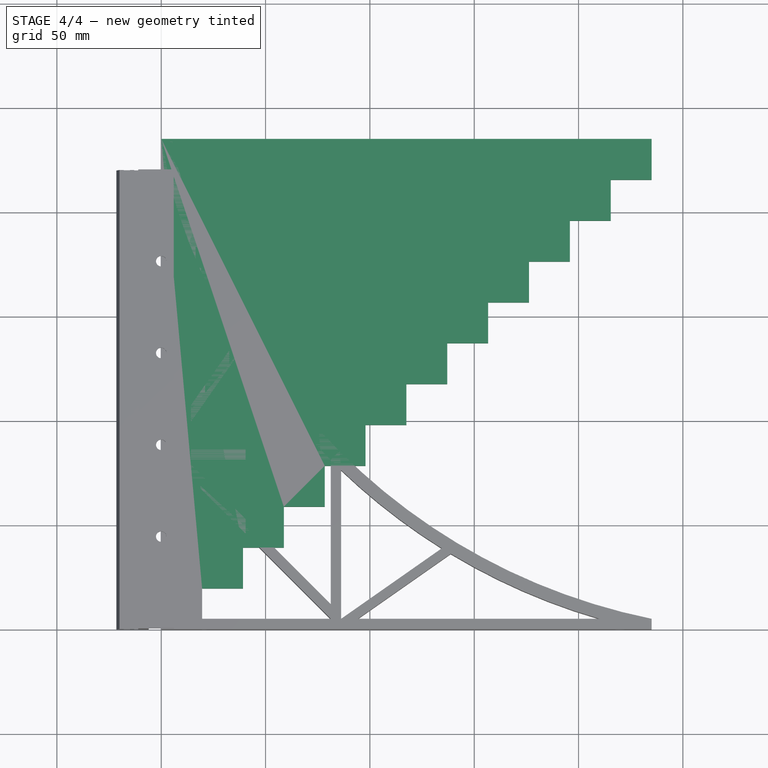
[diagram: stage 4 of 4 — top view after this stage's code; geometry added in this stage tinted green]
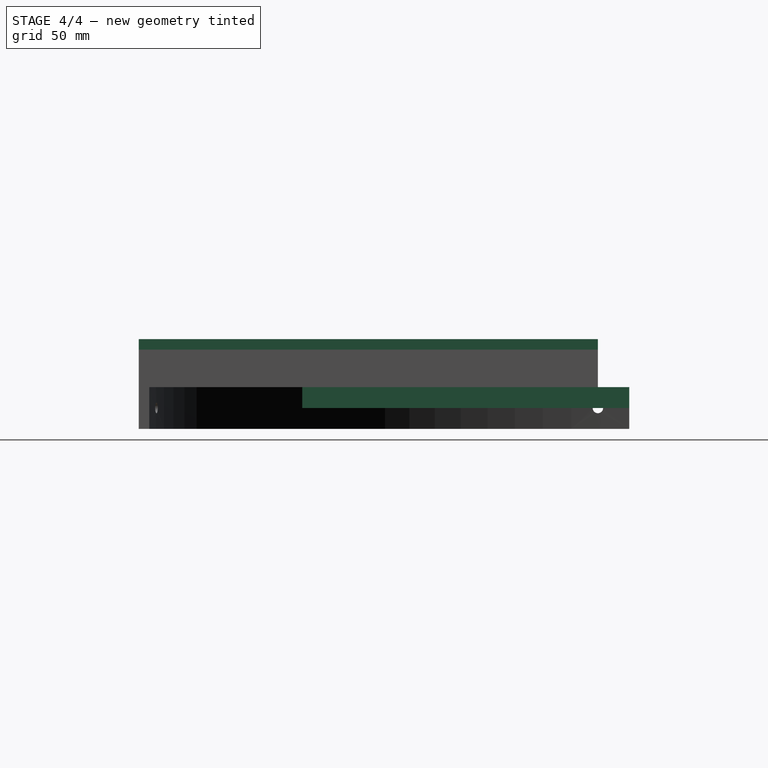
[diagram: stage 4 of 4 — right view after this stage's code; geometry added in this stage tinted green]
FEATURE [Spreadsheet::Sheet] Spreadsheet  label="Parameters"
  PythonMode = false
  ShowCells = 0
  TreeRank = 10
  cells = A1=Thickness; B1(thickness)=5; A2=Board Width; B2(board_width)=235; A3=Angle; B3(angle)=45; A5=Tetris; A6=Box Length; B6(box_length)==board_width / 12; A8=Bin Hangars; A9=Hangar Length; B9(hangar_length)==board_width - 15; A10=Plastic Thickness; B10(plastic_thickness)=2; A11=Shelf to Bin Top; B11(shelf_to_bin_top)=15; A12=Bin Lid Height; B12(bin_lid_height)=13; A13=First Tool Offset; B13(tooth_offset_first)=4; A14=Second Tool Offset; B14(tooth_offset_second)=7; A15=Tooth Depth; B15(tooth_depth)=8; A16=Overhang Depth; B16(bin_lid_overhand_depth)=4; A17=Screw Hold Diameter; B17(bin_hangar_screw_hole_diameter)=5; A18=Screw Head Diameter; B18(bin_hangar_screw_head_diameter)=12
FEATURE [Sketcher::SketchObject] Sketch
  ArcFitTolerance = 1e-06
  AttachmentSupport = -> [XY_Plane]
  ExternalBSplineMaxDegree = 5
  ExternalBSplineTolerance = 0.0001
  FullyConstrained = true
  InternalTolerance = 1e-06
  InvalidShape = false
  MakeInternals = false
  MapMode = 5
  Support = -> [XY_Plane]
  TreeRank = 15
  ValidateShape = true
  expr: Constraints[66] = <<Parameters>>.board_width
  sketch-geometry (26):
    g0: LineSegment StartX=0 StartY=0 StartZ=0 EndX=19.5833 EndY=0 EndZ=0
    g1: LineSegment StartX=19.5833 StartY=0 StartZ=0 EndX=19.5833 EndY=19.5833 EndZ=0
    g2: LineSegment StartX=19.5833 StartY=19.5833 StartZ=0 EndX=39.1667 EndY=19.5833 EndZ=0
    g3: LineSegment StartX=39.1667 StartY=19.5833 StartZ=0 EndX=39.1667 EndY=39.1667 EndZ=0
    g4: LineSegment StartX=39.1667 StartY=39.1667 StartZ=0 EndX=58.75 EndY=39.1667 EndZ=0
    g5: LineSegment StartX=58.75 StartY=39.1667 StartZ=0 EndX=58.75 EndY=58.75 EndZ=0
    g6: LineSegment StartX=58.75 StartY=58.75 StartZ=0 EndX=78.3333 EndY=58.75 EndZ=0
    g7: LineSegment StartX=78.3333 StartY=58.75 StartZ=0 EndX=78.3333 EndY=78.3333 EndZ=0
    g8: LineSegment StartX=78.3333 StartY=78.3333 StartZ=0 EndX=97.9167 EndY=78.3333 EndZ=0
    g9: LineSegment StartX=97.9167 StartY=78.3333 StartZ=0 EndX=97.9167 EndY=97.9167 EndZ=0
    g10: LineSegment StartX=97.9167 StartY=97.9167 StartZ=0 EndX=117.5 EndY=97.9167 EndZ=0
    g11: LineSegment StartX=117.5 StartY=97.9167 StartZ=0 EndX=117.5 EndY=117.5 EndZ=0
    g12: LineSegment StartX=117.5 StartY=117.5 StartZ=0 EndX=137.083 EndY=117.5 EndZ=0
    g13: LineSegment StartX=137.083 StartY=117.5 StartZ=0 EndX=137.083 EndY=137.083 EndZ=0
    g14: LineSegment StartX=137.083 StartY=137.083 StartZ=0 EndX=156.667 EndY=137.083 EndZ=0
    g15: LineSegment StartX=156.667 StartY=137.083 StartZ=0 EndX=156.667 EndY=156.667 EndZ=0
    g16: LineSegment StartX=156.667 StartY=156.667 StartZ=0 EndX=176.25 EndY=156.667 EndZ=0
    g17: LineSegment StartX=176.25 StartY=156.667 StartZ=0 EndX=176.25 EndY=176.25 EndZ=0
    g18: LineSegment StartX=176.25 StartY=176.25 StartZ=0 EndX=195.833 EndY=176.25 EndZ=0
    g19: LineSegment StartX=195.833 StartY=176.25 StartZ=0 EndX=195.833 EndY=195.833 EndZ=0
    g20: LineSegment StartX=195.833 StartY=195.833 StartZ=0 EndX=215.417 EndY=195.833 EndZ=0
    g21: LineSegment StartX=0 StartY=0 StartZ=0 EndX=0 EndY=235 EndZ=0
    g22: LineSegment StartX=0 StartY=235 StartZ=0 EndX=235 EndY=235 EndZ=0
    g23: LineSegment StartX=215.417 StartY=195.833 StartZ=0 EndX=215.417 EndY=215.417 EndZ=0
    g24: LineSegment StartX=215.417 StartY=215.417 StartZ=0 EndX=235 EndY=215.417 EndZ=0
    g25: LineSegment StartX=235 StartY=215.417 StartZ=0 EndX=235 EndY=235 EndZ=0
  constraints (58):
    c: Horizontal(g0)
    c: Coincident(g1,g0)
    c: Vertical(g1)
    c: Coincident(g2,g1)
    c: Horizontal(g2)
    c: Coincident(g3,g2)
    c: Vertical(g3)
    c: Coincident(g4,g3)
    c: Horizontal(g4)
    c: Coincident(g5,g4)
    c: Vertical(g5)
    c: Coincident(g6,g5)
    c: Horizontal(g6)
    c: Coincident(g7,g6)
    c: Vertical(g7)
    c: Coincident(g8,g7)
    c: Horizontal(g8)
    c: Coincident(g9,g8)
    c: Vertical(g9)
    c: Coincident(g10,g9)
    c: Horizontal(g10)
    c: Coincident(g11,g10)
    c: Vertical(g11)
    c: Coincident(g12,g11)
    c: Horizontal(g12)
    c: Coincident(g13,g12)
    c: Vertical(g13)
    c: Coincident(g14,g13)
    c: Horizontal(g14)
    c: Coincident(g15,g14)
    c: Vertical(g15)
    c: Coincident(g16,g15)
    c: Horizontal(g16)
    c: Coincident(g17,g16)
    c: Vertical(g17)
    c: Coincident(g18,g17)
    c: Horizontal(g18)
    c: Coincident(g19,g18)
    c: Vertical(g19)
    c: Coincident(g20,g19)
    c: Horizontal(g20)
    c: Coincident(g21,g0)
    c: Vertical(g21)
    c: Equal(g0, g1-g20) x20
    c: Coincident(g0,g-1)
    c: Coincident(g22,g21)
    c: Horizontal(g22)
    c: DistanceX(g21,g22) = 235
    c: Coincident(g23,g20)
    c: Vertical(g23)
    c: Coincident(g24,g23)
    c: Horizontal(g24)
    c: Coincident(g25,g24)
    c: Coincident(g25,g22)
    c: Vertical(g25)
    c: Equal(g0,g23)
    c: Equal(g0,g24)
    c: Equal(g0,g25)
FEATURE [PartDesign::Pad] Pad
  AddSubType = 0
  AlongSketchNormal = false
  AutoTaperInnerAngle = true
  CheckUpToFaceLimits = true
  ClaimChildren = false
  Direction = (0,0,1)
  Fit = 0
  FitJoin = 0
  InnerFit = 0
  InnerFitJoin = 0
  InvalidShape = false
  Length = 10
  Length2 = 100
  Linearize = true
  NewSolid = false
  Profile = -> Sketch
  Suppress = false
  TaperInnerAngle = 0
  TaperInnerAngleRev = 0
  TreeRank = 16
  Type = 0
  ValidateShape = true
  _ProfileBasedVersion = 1
FEATURE [Sketcher::SketchObject] Sketch001
  ArcFitTolerance = 1e-06
  AttachmentSupport = -> [Pad]
  ExternalBSplineMaxDegree = 5
  ExternalBSplineTolerance = 0.0001
  FullyConstrained = false
  InternalTolerance = 1e-06
  InvalidShape = false
  MakeInternals = false
  MapMode = 5
  Placement = pos=(0,0,10) rot=(0,0,1;0rad)
  Support = -> [Pad]
  TreeRank = 17
  ValidateShape = true
  expr: Constraints[15] = <<Parameters>>.board_width
  expr: Constraints[27] = <<Parameters>>.board_width
  expr: Constraints[57] = <<Parameters>>.board_width / 12
  expr: Constraints[58] = <<Parameters>>.board_width / 12
  expr: Constraints[59] = <<Parameters>>.board_width / 12
  expr: Constraints[60] = <<Parameters>>.board_width / 12
  expr: Constraints[61] = <<Parameters>>.board_width / 12
  expr: Constraints[62] = <<Parameters>>.board_width / 12
  expr: Constraints[63] = <<Parameters>>.board_width / 12
  expr: Constraints[64] = <<Parameters>>.board_width / 12
  expr: Constraints[65] = <<Parameters>>.board_width / 12
  expr: Constraints[66] = <<Parameters>>.board_width / 12
  expr: Constraints[69] = <<Parameters>>.board_width / 12
  expr: Constraints[70] = <<Parameters>>.board_width / 12
  expr: Constraints[71] = <<Parameters>>.board_width / 12
  expr: Constraints[72] = <<Parameters>>.board_width / 12
  expr: Constraints[73] = <<Parameters>>.board_width / 12
  expr: Constraints[74] = <<Parameters>>.board_width / 12
  expr: Constraints[75] = <<Parameters>>.board_width / 12
  expr: Constraints[76] = <<Parameters>>.board_width / 12
  expr: Constraints[77] = <<Parameters>>.board_width / 12
  expr: Constraints[78] = <<Parameters>>.board_width / 12
  expr: Constraints[79] = <<Parameters>>.board_width / 12
  expr: Constraints[80] = <<Parameters>>.board_width / 12
  expr: Constraints[95] = <<Parameters>>.board_width / 12
  sketch-geometry (30):
    g0: LineSegment [constr] StartX=19.5833 StartY=0 StartZ=0 EndX=19.5833 EndY=235 EndZ=0
    g1: LineSegment [constr] StartX=58.75 StartY=39.1667 StartZ=0 EndX=58.75 EndY=235 EndZ=0
    g2: LineSegment [constr] StartX=78.3333 StartY=58.75 StartZ=0 EndX=78.3333 EndY=235 EndZ=0
    g3: LineSegment [constr] StartX=97.9167 StartY=78.3333 StartZ=0 EndX=97.9167 EndY=235 EndZ=0
    g4: LineSegment [constr] StartX=117.5 StartY=97.9167 StartZ=0 EndX=117.5 EndY=235 EndZ=0
    g5: LineSegment [constr] StartX=137.083 StartY=117.5 StartZ=0 EndX=137.083 EndY=235 EndZ=0
    g6: LineSegment [constr] StartX=156.667 StartY=137.083 StartZ=0 EndX=156.667 EndY=235 EndZ=0
    g7: LineSegment [constr] StartX=176.25 StartY=156.667 StartZ=0 EndX=176.25 EndY=235 EndZ=0
    g8: LineSegment [constr] StartX=195.833 StartY=176.25 StartZ=0 EndX=195.833 EndY=235 EndZ=0
    g9: LineSegment [constr] StartX=215.417 StartY=195.833 StartZ=0 EndX=215.417 EndY=235 EndZ=0
    g10: LineSegment [constr] StartX=235 StartY=215.417 StartZ=0 EndX=235 EndY=235 EndZ=0
    g11: LineSegment [constr] StartX=0 StartY=0 StartZ=0 EndX=0 EndY=235 EndZ=0
    g12: LineSegment [constr] StartX=0 StartY=235 StartZ=0 EndX=235 EndY=235 EndZ=0
    g13: LineSegment [constr] StartX=58.75 StartY=39.1667 StartZ=0 EndX=0 EndY=39.1667 EndZ=0
    g14: LineSegment [constr] StartX=78.3333 StartY=58.75 StartZ=0 EndX=0 EndY=58.75 EndZ=0
    g15: LineSegment [constr] StartX=97.9167 StartY=78.3333 StartZ=0 EndX=0 EndY=78.3333 EndZ=0
    g16: LineSegment [constr] StartX=117.5 StartY=97.9167 StartZ=0 EndX=0 EndY=97.9167 EndZ=0
    g17: LineSegment [constr] StartX=137.083 StartY=117.5 StartZ=0 EndX=0 EndY=117.5 EndZ=0
    g18: LineSegment [constr] StartX=156.667 StartY=137.083 StartZ=0 EndX=0 EndY=137.083 EndZ=0
    g19: LineSegment [constr] StartX=176.25 StartY=156.667 StartZ=0 EndX=0 EndY=156.667 EndZ=0
    g20: LineSegment [constr] StartX=195.833 StartY=176.25 StartZ=0 EndX=0 EndY=176.25 EndZ=0
    g21: LineSegment [constr] StartX=215.417 StartY=195.833 StartZ=0 EndX=0 EndY=195.833 EndZ=0
    g22: LineSegment [constr] StartX=235 StartY=215.417 StartZ=0 EndX=0 EndY=215.417 EndZ=0
    g23: LineSegment [constr] StartX=39.1667 StartY=19.5833 StartZ=0 EndX=39.1667 EndY=235 EndZ=0
    g24: LineSegment StartX=74.8668 StartY=25.0891 StartZ=0 EndX=93.9501 EndY=25.0891 EndZ=0
    g25: LineSegment StartX=74.8668 StartY=24.5891 StartZ=0 EndX=93.9501 EndY=24.5891 EndZ=0
    g26: LineSegment StartX=93.9501 StartY=25.0891 StartZ=0 EndX=94.2001 EndY=24.8391 EndZ=0
    g27: LineSegment StartX=93.9501 StartY=24.5891 StartZ=0 EndX=94.2001 EndY=24.8391 EndZ=0
    g28: LineSegment StartX=74.8668 StartY=25.0891 StartZ=0 EndX=74.6168 EndY=24.8391 EndZ=0
    g29: LineSegment StartX=74.6168 StartY=24.8391 StartZ=0 EndX=74.8668 EndY=24.5891 EndZ=0
  constraints (98):
    c: PointOnObject(g0,g-1)
    c: Vertical(g0)
    c: Vertical(g1)
    c: Vertical(g2)
    c: Vertical(g3)
    c: Vertical(g4)
    c: Vertical(g5)
    c: Vertical(g6)
    c: Vertical(g7)
    c: Vertical(g8)
    c: Vertical(g9)
    c: Vertical(g10)
    c: PointOnObject(g11,g-2)
    c: Coincident(g12,g11)
    c: Horizontal(g12)
    c: DistanceX(g11,g12) = 235
    c: Coincident(g10,g12)
    c: PointOnObject(g9,g12)
    c: PointOnObject(g8,g12)
    c: PointOnObject(g7,g12)
    c: PointOnObject(g6,g12)
    c: PointOnObject(g5,g12)
    c: PointOnObject(g4,g12)
    c: PointOnObject(g3,g12)
    c: PointOnObject(g2,g12)
    c: PointOnObject(g1,g12)
    c: PointOnObject(g0,g12)
    c: DistanceY(g11,g11) = 235
    c: Coincident(g13,g1)
    c: PointOnObject(g13,g11)
    c: Horizontal(g13)
    c: Coincident(g14,g2)
    c: PointOnObject(g14,g11)
    c: Horizontal(g14)
    c: Coincident(g15,g3)
    c: PointOnObject(g15,g11)
    c: Horizontal(g15)
    c: Coincident(g16,g4)
    c: PointOnObject(g16,g11)
    c: Horizontal(g16)
    c: Coincident(g17,g5)
    c: Horizontal(g17)
    c: Coincident(g18,g6)
    c: PointOnObject(g18,g11)
    c: Horizontal(g18)
    c: Coincident(g19,g7)
    c: PointOnObject(g19,g11)
    c: Horizontal(g19)
    c: Coincident(g20,g8)
    c: PointOnObject(g20,g11)
    c: Horizontal(g20)
    c: Coincident(g21,g9)
    c: PointOnObject(g21,g11)
    c: Horizontal(g21)
    c: Coincident(g22,g10)
    c: PointOnObject(g22,g11)
    c: Horizontal(g22)
    c: DistanceY(g10,g10) = 19.5833
    c: DistanceY(g9,g10) = 19.5833
    c: DistanceY(g8,g9) = 19.5833
    c: DistanceY(g7,g8) = 19.5833
    c: DistanceY(g6,g7) = 19.5833
    c: DistanceY(g5,g6) = 19.5833
    c: DistanceY(g4,g5) = 19.5833
    c: DistanceY(g3,g4) = 19.5833
    c: DistanceY(g2,g3) = 19.5833
    c: DistanceY(g1,g2) = 19.5833
    c: PointOnObject(g23,g12)
    c: Vertical(g23)
    c: DistanceY(g23,g1) = 19.5833
    c: DistanceX(g11,g0) = 19.5833
    c: DistanceX(g0,g23) = 19.5833
    c: DistanceX(g23,g1) = 19.5833
    c: DistanceX(g1,g2) = 19.5833
    c: DistanceX(g2,g3) = 19.5833
    c: DistanceX(g3,g4) = 19.5833
    c: DistanceX(g4,g5) = 19.5833
    c: DistanceX(g5,g6) = 19.5833
    c: DistanceX(g6,g7) = 19.5833
    c: DistanceX(g7,g8) = 19.5833
    c: DistanceX(g8,g9) = 19.5833
    c: PointOnObject(g17,g11)
    c: Horizontal(g24)
    c: Horizontal(g25)
    c: Coincident(g26,g24)
    c: Coincident(g27,g25)
    c: Coincident(g27,g26)
    c: Coincident(g28,g24)
    c: Coincident(g29,g28)
    c: Coincident(g29,g25)
    c: Equal(g24,g25)
    c: Equal(g27,g26)
    c: Equal(g27,g29)
    c: Equal(g27,g28)
    c: DistanceX(g25,g24) = 0
    c: DistanceX(g28,g26) = 19.5833
    c: Angle(g25,g29) = 2.35619
    c: DistanceY(g25,g24) = 0.5
FEATURE [PartDesign::Pocket] Pocket
  AddSubType = 1
  AutoTaperInnerAngle = true
  BaseFeature = -> Pad
  CheckUpToFaceLimits = true
  ClaimChildren = false
  Fit = 0
  FitJoin = 0
  InnerFit = 0
  InnerFitJoin = 0
  InvalidShape = false
  Length = 3
  Length2 = 100
  Linearize = true
  NewSolid = false
  Profile = -> Sketch001
  Suppress = false
  TaperInnerAngle = 0
  TaperInnerAngleRev = 0
  TreeRank = 18
  Type = 0
  ValidateShape = true
  _ProfileBasedVersion = 1
  _Version = 1
FEATURE [Sketcher::SketchObject] Sketch008
  ArcFitTolerance = 1e-06
  AttachmentSupport = -> [XZ_Plane002]
  ExternalBSplineMaxDegree = 5
  ExternalBSplineTolerance = 0.0001
  FullyConstrained = false
  InternalTolerance = 1e-06
  InvalidShape = false
  MakeInternals = false
  MapMode = 5
  Placement = pos=(0,0,0) rot=(1,0,0;1.5708rad)
  Support = -> [XZ_Plane002]
  TreeRank = 55
  ValidateShape = true
  sketch-geometry (4):
    g0: LineSegment StartX=6 StartY=58.1729 StartZ=0 EndX=39.6565 EndY=58.1729 EndZ=0
    g1: LineSegment StartX=39.6565 StartY=58.1729 StartZ=0 EndX=39.6565 EndY=-11.3329 EndZ=0
    g2: LineSegment StartX=39.6565 StartY=-11.3329 StartZ=0 EndX=6 EndY=-11.3329 EndZ=0
    g3: LineSegment StartX=6 StartY=-11.3329 StartZ=0 EndX=6 EndY=58.1729 EndZ=0
  constraints (9):
    c: Coincident(g0,g1)
    c: Coincident(g1,g2)
    c: Coincident(g2,g3)
    c: Coincident(g3,g0)
    c: Horizontal(g0)
    c: Horizontal(g2)
    c: Vertical(g1)
    c: Vertical(g3)
    c: DistanceX(g-1,g2) = 6
FEATURE [PartDesign::Pocket] Pocket003
  AddSubType = 1
  AutoTaperInnerAngle = true
  BaseFeature = -> Pocket002
  CheckUpToFaceLimits = true
  ClaimChildren = false
  Fit = 0
  FitJoin = 0
  InnerFit = 0
  InnerFitJoin = 0
  InvalidShape = false
  Length = 1000
  Length2 = 10000
  Linearize = true
  NewSolid = false
  Profile = -> Sketch008
  Suppress = false
  TaperInnerAngle = 0
  TaperInnerAngleRev = 0
  TreeRank = 56
  Type = 4
  ValidateShape = true
  _ProfileBasedVersion = 1
  _Version = 1
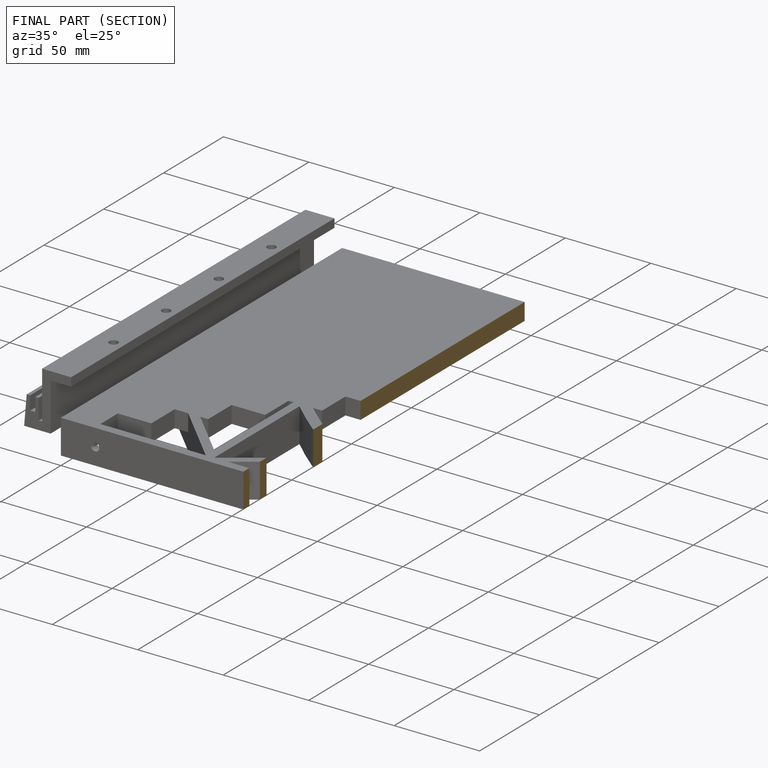
[diagram: finished part — half-section view (interior)]
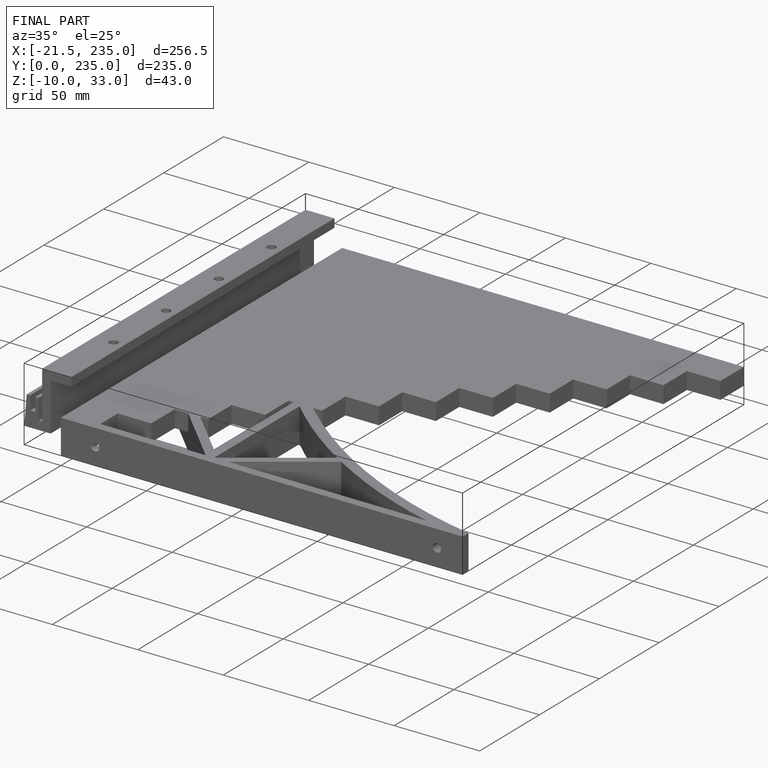
[diagram: finished part — iso view with bounding-box wireframe]
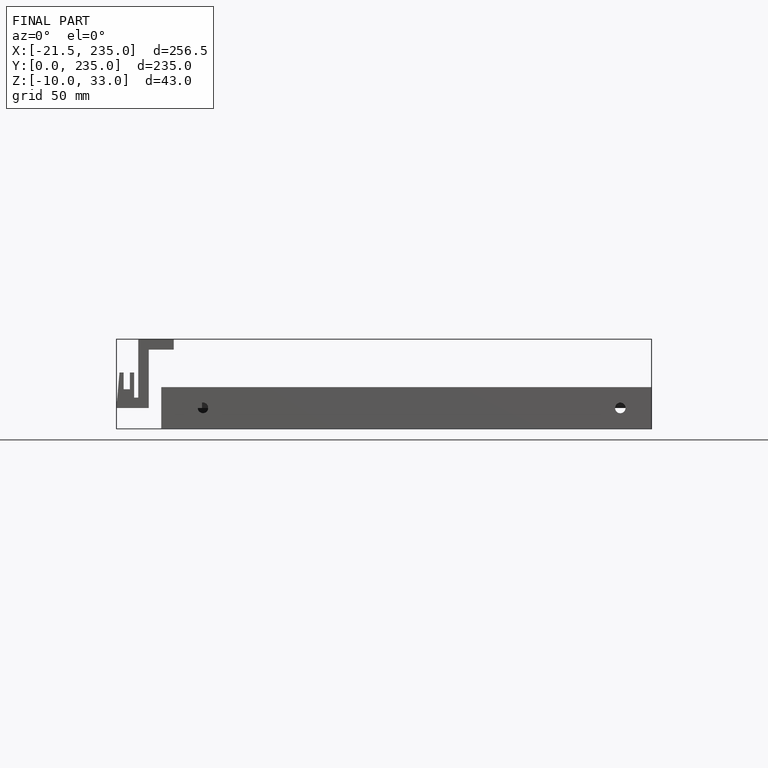
[diagram: finished part — front view with bounding-box wireframe]
